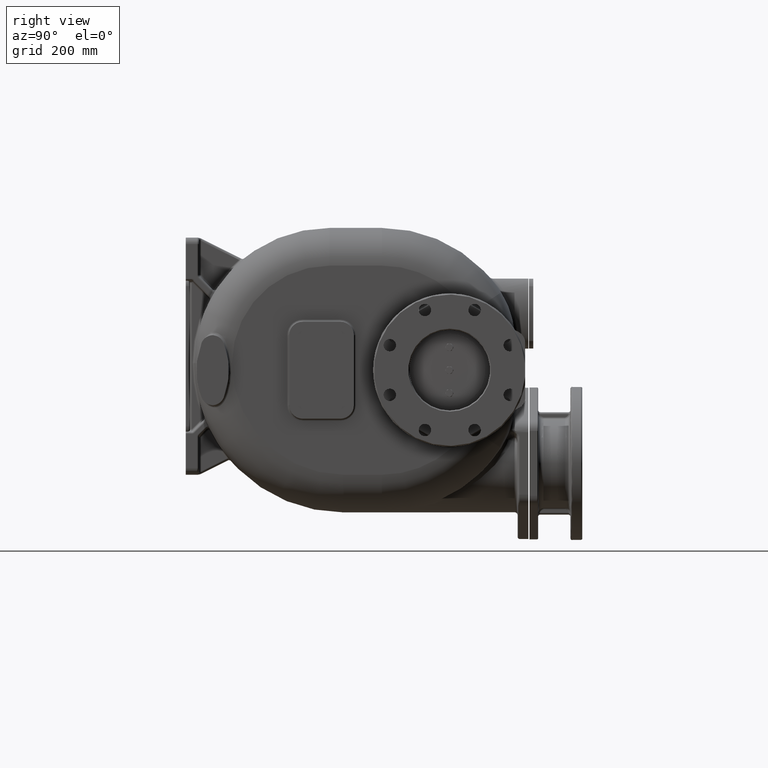
[diagram: clean part render]
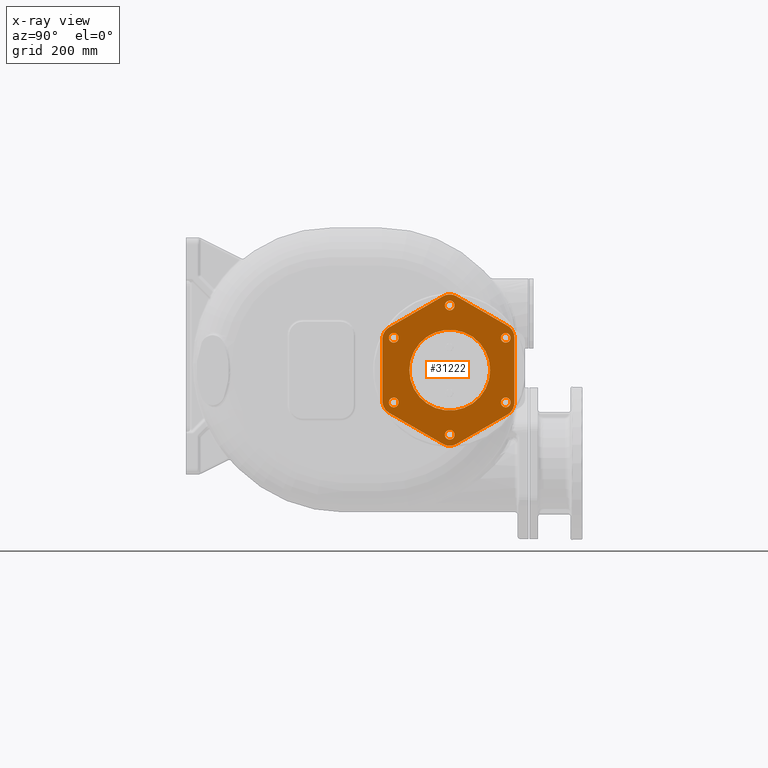
[diagram: x-ray — body ghosted, one internal face saturated and labeled with its STEP entity id]
A machine part, right view, then the same camera in x-ray: the body is ghosted and one INTERNAL B-rep face — a face not visible from any outside direction — is saturated and labeled: STEP entity #31222.
In plain terms, the highlighted planar face has unit normal (-1, 0, 0).
Its self-contained STEP definition (entity closure, byte-faithful):
#6515=DIRECTION('',(0.E0,-8.660254037844E-1,5.E-1));
#6516=VECTOR('',#6515,1.154700538379E2);
#6517=CARTESIAN_POINT('',(2.305E2,4.775E2,-1.631206889325E2));
#6518=LINE('',#6517,#6516);
#6557=CARTESIAN_POINT('',(2.305E2,3.9E2,-8.373502691896E1));
#6558=DIRECTION('',(1.E0,0.E0,0.E0));
#6559=DIRECTION('',(0.E0,-1.E0,0.E0));
#6560=AXIS2_PLACEMENT_3D('',#6557,#6558,#6559);
#6566=DIRECTION('',(0.E0,0.E0,1.E0));
#6567=VECTOR('',#6566,1.154700538379E2);
#6568=CARTESIAN_POINT('',(2.305E2,3.65E2,-8.373502691896E1));
#6569=LINE('',#6568,#6567);
#6608=CARTESIAN_POINT('',(2.305E2,3.9E2,3.173502691896E1));
#6609=DIRECTION('',(1.E0,0.E0,0.E0));
#6610=DIRECTION('',(0.E0,-5.E-1,8.660254037844E-1));
#6611=AXIS2_PLACEMENT_3D('',#6608,#6609,#6610);
#6617=DIRECTION('',(0.E0,8.660254037844E-1,5.E-1));
#6618=VECTOR('',#6617,1.154700538379E2);
#6619=CARTESIAN_POINT('',(2.305E2,3.775E2,5.338566201357E1));
#6620=LINE('',#6619,#6618);
#6659=CARTESIAN_POINT('',(2.305E2,4.9E2,8.947005383793E1));
#6660=DIRECTION('',(1.E0,0.E0,0.E0));
#6661=DIRECTION('',(0.E0,5.E-1,8.660254037844E-1));
#6662=AXIS2_PLACEMENT_3D('',#6659,#6660,#6661);
#6668=DIRECTION('',(0.E0,8.660254037844E-1,-5.E-1));
#6669=VECTOR('',#6668,1.096965511460E2);
#6670=CARTESIAN_POINT('',(2.305E2,5.025E2,1.111206889325E2));
#6671=LINE('',#6670,#6669);
#6783=DIRECTION('',(0.E0,0.E0,-1.E0));
#6784=VECTOR('',#6783,1.212435565298E2);
#6785=CARTESIAN_POINT('',(2.305E2,6.1E2,3.462177826491E1));
#6786=LINE('',#6785,#6784);
#6791=CARTESIAN_POINT('',(2.305E2,5.85E2,-8.662177826491E1));
#6792=DIRECTION('',(1.E0,0.E0,0.E0));
#6793=DIRECTION('',(0.E0,5.E-1,-8.660254037844E-1));
#6794=AXIS2_PLACEMENT_3D('',#6791,#6792,#6793);
#6800=DIRECTION('',(0.E0,-8.660254037844E-1,-5.E-1));
#6801=VECTOR('',#6800,1.096965511460E2);
#6802=CARTESIAN_POINT('',(2.305E2,5.975E2,-1.082724133595E2));
#6803=LINE('',#6802,#6801);
#6889=CARTESIAN_POINT('',(2.305E2,4.9E2,-1.414700538379E2));
#6890=DIRECTION('',(1.E0,0.E0,0.E0));
#6891=DIRECTION('',(0.E0,-5.E-1,-8.660254037844E-1));
#6892=AXIS2_PLACEMENT_3D('',#6889,#6890,#6891);
#6894=CARTESIAN_POINT('',(2.305E2,4.9E2,9.4E1));
#6895=DIRECTION('',(1.E0,0.E0,0.E0));
#6896=DIRECTION('',(0.E0,0.E0,1.E0));
#6897=AXIS2_PLACEMENT_3D('',#6894,#6895,#6896);
#6899=CARTESIAN_POINT('',(2.305E2,4.9E2,9.4E1));
#6900=DIRECTION('',(1.E0,0.E0,0.E0));
#6901=DIRECTION('',(0.E0,0.E0,-1.E0));
#6902=AXIS2_PLACEMENT_3D('',#6899,#6900,#6901);
#6904=CARTESIAN_POINT('',(2.305E2,5.939230484541E2,3.4E1));
#6905=DIRECTION('',(1.E0,0.E0,0.E0));
#6906=DIRECTION('',(0.E0,8.660254037844E-1,5.E-1));
#6907=AXIS2_PLACEMENT_3D('',#6904,#6905,#6906);
#6909=CARTESIAN_POINT('',(2.305E2,5.939230484541E2,3.4E1));
#6910=DIRECTION('',(1.E0,0.E0,0.E0));
#6911=DIRECTION('',(0.E0,-8.660254037844E-1,-5.E-1));
#6912=AXIS2_PLACEMENT_3D('',#6909,#6910,#6911);
#6914=CARTESIAN_POINT('',(2.305E2,5.939230484541E2,-8.6E1));
#6915=DIRECTION('',(1.E0,0.E0,0.E0));
#6916=DIRECTION('',(0.E0,8.660254037844E-1,-5.E-1));
#6917=AXIS2_PLACEMENT_3D('',#6914,#6915,#6916);
#6919=CARTESIAN_POINT('',(2.305E2,5.939230484541E2,-8.6E1));
#6920=DIRECTION('',(1.E0,0.E0,0.E0));
#6921=DIRECTION('',(0.E0,-8.660254037844E-1,5.E-1));
#6922=AXIS2_PLACEMENT_3D('',#6919,#6920,#6921);
#6924=CARTESIAN_POINT('',(2.305E2,4.9E2,-1.46E2));
#6925=DIRECTION('',(1.E0,0.E0,0.E0));
#6926=DIRECTION('',(0.E0,0.E0,-1.E0));
#6927=AXIS2_PLACEMENT_3D('',#6924,#6925,#6926);
#6929=CARTESIAN_POINT('',(2.305E2,4.9E2,-1.46E2));
#6930=DIRECTION('',(1.E0,0.E0,0.E0));
#6931=DIRECTION('',(0.E0,0.E0,1.E0));
#6932=AXIS2_PLACEMENT_3D('',#6929,#6930,#6931);
#6934=CARTESIAN_POINT('',(2.305E2,3.860769515459E2,-8.6E1));
#6935=DIRECTION('',(1.E0,0.E0,0.E0));
#6936=DIRECTION('',(0.E0,-8.660254037844E-1,-5.E-1));
#6937=AXIS2_PLACEMENT_3D('',#6934,#6935,#6936);
#6939=CARTESIAN_POINT('',(2.305E2,3.860769515459E2,-8.6E1));
#6940=DIRECTION('',(1.E0,0.E0,0.E0));
#6941=DIRECTION('',(0.E0,8.660254037844E-1,5.E-1));
#6942=AXIS2_PLACEMENT_3D('',#6939,#6940,#6941);
#6944=CARTESIAN_POINT('',(2.305E2,3.860769515459E2,3.4E1));
#6945=DIRECTION('',(1.E0,0.E0,0.E0));
#6946=DIRECTION('',(0.E0,-8.660254037844E-1,5.E-1));
#6947=AXIS2_PLACEMENT_3D('',#6944,#6945,#6946);
#6949=CARTESIAN_POINT('',(2.305E2,3.860769515459E2,3.4E1));
#6950=DIRECTION('',(1.E0,0.E0,0.E0));
#6951=DIRECTION('',(0.E0,8.660254037844E-1,-5.E-1));
#6952=AXIS2_PLACEMENT_3D('',#6949,#6950,#6951);
#6954=CARTESIAN_POINT('',(2.305E2,5.85E2,3.462177826491E1));
#6955=DIRECTION('',(1.E0,0.E0,0.E0));
#6956=DIRECTION('',(0.E0,1.E0,0.E0));
#6957=AXIS2_PLACEMENT_3D('',#6954,#6955,#6956);
#6963=CARTESIAN_POINT('',(2.305E2,4.9E2,-2.6E1));
#6964=DIRECTION('',(1.E0,0.E0,0.E0));
#6965=DIRECTION('',(0.E0,1.E0,0.E0));
#6966=AXIS2_PLACEMENT_3D('',#6963,#6964,#6965);
#7078=CARTESIAN_POINT('',(2.305E2,4.9E2,-2.6E1));
#7079=DIRECTION('',(-1.E0,0.E0,0.E0));
#7080=DIRECTION('',(0.E0,1.E0,0.E0));
#7081=AXIS2_PLACEMENT_3D('',#7078,#7079,#7080);
#22972=CARTESIAN_POINT('',(2.305E2,5.65E2,-2.6E1));
#22973=CARTESIAN_POINT('',(2.305E2,4.15E2,-2.6E1));
#22974=VERTEX_POINT('',#22972);
#22975=VERTEX_POINT('',#22973);
#22976=CARTESIAN_POINT('',(2.305E2,4.9E2,1.03E2));
#22977=CARTESIAN_POINT('',(2.305E2,4.9E2,8.5E1));
#22978=VERTEX_POINT('',#22976);
#22979=VERTEX_POINT('',#22977);
#22980=CARTESIAN_POINT('',(2.305E2,6.017172770882E2,3.85E1));
#22981=CARTESIAN_POINT('',(2.305E2,5.861288198201E2,2.95E1));
#22982=VERTEX_POINT('',#22980);
#22983=VERTEX_POINT('',#22981);
#22984=CARTESIAN_POINT('',(2.305E2,6.017172770882E2,-9.05E1));
#22985=CARTESIAN_POINT('',(2.305E2,5.861288198201E2,-8.15E1));
#22986=VERTEX_POINT('',#22984);
#22987=VERTEX_POINT('',#22985);
#22988=CARTESIAN_POINT('',(2.305E2,4.9E2,-1.55E2));
#22989=CARTESIAN_POINT('',(2.305E2,4.9E2,-1.37E2));
#22990=VERTEX_POINT('',#22988);
#22991=VERTEX_POINT('',#22989);
#22992=CARTESIAN_POINT('',(2.305E2,3.782827229118E2,-9.05E1));
#22993=CARTESIAN_POINT('',(2.305E2,3.938711801799E2,-8.15E1));
#22994=VERTEX_POINT('',#22992);
#22995=VERTEX_POINT('',#22993);
#22996=CARTESIAN_POINT('',(2.305E2,3.782827229118E2,3.85E1));
#22997=CARTESIAN_POINT('',(2.305E2,3.938711801799E2,2.95E1));
#22998=VERTEX_POINT('',#22996);
#22999=VERTEX_POINT('',#22997);
#23000=CARTESIAN_POINT('',(2.305E2,3.65E2,-8.373502691896E1));
#23001=CARTESIAN_POINT('',(2.305E2,3.65E2,3.173502691896E1));
#23002=VERTEX_POINT('',#23000);
#23003=VERTEX_POINT('',#23001);
#23004=CARTESIAN_POINT('',(2.305E2,3.775E2,5.338566201357E1));
#23005=CARTESIAN_POINT('',(2.305E2,4.775E2,1.111206889325E2));
#23006=VERTEX_POINT('',#23004);
#23007=VERTEX_POINT('',#23005);
#23008=CARTESIAN_POINT('',(2.305E2,5.025E2,1.111206889325E2));
#23009=CARTESIAN_POINT('',(2.305E2,5.975E2,5.627241335952E1));
#23010=VERTEX_POINT('',#23008);
#23011=VERTEX_POINT('',#23009);
#23012=CARTESIAN_POINT('',(2.305E2,6.1E2,3.462177826491E1));
#23013=CARTESIAN_POINT('',(2.305E2,6.1E2,-8.662177826491E1));
#23014=VERTEX_POINT('',#23012);
#23015=VERTEX_POINT('',#23013);
#23016=CARTESIAN_POINT('',(2.305E2,5.975E2,-1.082724133595E2));
#23017=CARTESIAN_POINT('',(2.305E2,5.025E2,-1.631206889325E2));
#23018=VERTEX_POINT('',#23016);
#23019=VERTEX_POINT('',#23017);
#23020=CARTESIAN_POINT('',(2.305E2,4.775E2,-1.631206889325E2));
#23021=CARTESIAN_POINT('',(2.305E2,3.775E2,-1.053856620136E2));
#23022=VERTEX_POINT('',#23020);
#23023=VERTEX_POINT('',#23021);
#31160=CARTESIAN_POINT('',(2.305E2,4.9E2,-2.6E1));
#31161=DIRECTION('',(-1.E0,0.E0,0.E0));
#31162=DIRECTION('',(0.E0,1.E0,0.E0));
#31163=AXIS2_PLACEMENT_3D('',#31160,#31161,#31162);
#31164=PLANE('',#31163);
#31165=ORIENTED_EDGE('',*,*,#30913,.T.);
#31166=ORIENTED_EDGE('',*,*,#30956,.F.);
#31167=ORIENTED_EDGE('',*,*,#30971,.T.);
#31168=ORIENTED_EDGE('',*,*,#31014,.F.);
#31169=ORIENTED_EDGE('',*,*,#31029,.T.);
#31171=ORIENTED_EDGE('',*,*,#31170,.F.);
#31172=ORIENTED_EDGE('',*,*,#31083,.T.);
#31173=ORIENTED_EDGE('',*,*,#31098,.F.);
#31174=ORIENTED_EDGE('',*,*,#31113,.T.);
#31175=ORIENTED_EDGE('',*,*,#31154,.F.);
#31176=ORIENTED_EDGE('',*,*,#30855,.T.);
#31177=ORIENTED_EDGE('',*,*,#30898,.F.);
#31178=EDGE_LOOP('',(#31165,#31166,#31167,#31168,#31169,#31171,#31172,#31173,
#31174,#31175,#31176,#31177));
#31179=FACE_OUTER_BOUND('',#31178,.F.);
#31181=ORIENTED_EDGE('',*,*,#31180,.T.);
#31183=ORIENTED_EDGE('',*,*,#31182,.F.);
#31184=EDGE_LOOP('',(#31181,#31183));
#31185=FACE_BOUND('',#31184,.F.);
#31187=ORIENTED_EDGE('',*,*,#31186,.T.);
#31189=ORIENTED_EDGE('',*,*,#31188,.T.);
#31190=EDGE_LOOP('',(#31187,#31189));
#31191=FACE_BOUND('',#31190,.F.);
#31193=ORIENTED_EDGE('',*,*,#31192,.T.);
#31195=ORIENTED_EDGE('',*,*,#31194,.T.);
#31196=EDGE_LOOP('',(#31193,#31195));
#31197=FACE_BOUND('',#31196,.F.);
#31199=ORIENTED_EDGE('',*,*,#31198,.T.);
#31201=ORIENTED_EDGE('',*,*,#31200,.T.);
#31202=EDGE_LOOP('',(#31199,#31201));
#31203=FACE_BOUND('',#31202,.F.);
#31205=ORIENTED_EDGE('',*,*,#31204,.T.);
#31207=ORIENTED_EDGE('',*,*,#31206,.T.);
#31208=EDGE_LOOP('',(#31205,#31207));
#31209=FACE_BOUND('',#31208,.F.);
#31211=ORIENTED_EDGE('',*,*,#31210,.T.);
#31213=ORIENTED_EDGE('',*,*,#31212,.T.);
#31214=EDGE_LOOP('',(#31211,#31213));
#31215=FACE_BOUND('',#31214,.F.);
#31217=ORIENTED_EDGE('',*,*,#31216,.T.);
#31219=ORIENTED_EDGE('',*,*,#31218,.T.);
#31220=EDGE_LOOP('',(#31217,#31219));
#31221=FACE_BOUND('',#31220,.F.);
#31222=ADVANCED_FACE('',(#31179,#31185,#31191,#31197,#31203,#31209,#31215,
#31221),#31164,.F.);
#6561=CIRCLE('',#6560,2.5E1);
#6612=CIRCLE('',#6611,2.5E1);
#6663=CIRCLE('',#6662,2.5E1);
#6795=CIRCLE('',#6794,2.5E1);
#6893=CIRCLE('',#6892,2.5E1);
#6898=CIRCLE('',#6897,9.E0);
#6903=CIRCLE('',#6902,9.E0);
#6908=CIRCLE('',#6907,9.E0);
#6913=CIRCLE('',#6912,9.E0);
#6918=CIRCLE('',#6917,9.E0);
#6923=CIRCLE('',#6922,9.E0);
#6928=CIRCLE('',#6927,9.E0);
#6933=CIRCLE('',#6932,9.E0);
#6938=CIRCLE('',#6937,9.E0);
#6943=CIRCLE('',#6942,9.E0);
#6948=CIRCLE('',#6947,9.E0);
#6953=CIRCLE('',#6952,9.E0);
#6958=CIRCLE('',#6957,2.5E1);
#6967=CIRCLE('',#6966,7.5E1);
#7082=CIRCLE('',#7081,7.5E1);
#30855=EDGE_CURVE('',#23022,#23023,#6518,.T.);
#30898=EDGE_CURVE('',#23002,#23023,#6561,.T.);
#30913=EDGE_CURVE('',#23002,#23003,#6569,.T.);
#30956=EDGE_CURVE('',#23006,#23003,#6612,.T.);
#30971=EDGE_CURVE('',#23006,#23007,#6620,.T.);
#31014=EDGE_CURVE('',#23010,#23007,#6663,.T.);
#31029=EDGE_CURVE('',#23010,#23011,#6671,.T.);
#31083=EDGE_CURVE('',#23014,#23015,#6786,.T.);
#31098=EDGE_CURVE('',#23018,#23015,#6795,.T.);
#31113=EDGE_CURVE('',#23018,#23019,#6803,.T.);
#31154=EDGE_CURVE('',#23022,#23019,#6893,.T.);
#31170=EDGE_CURVE('',#23014,#23011,#6958,.T.);
#31180=EDGE_CURVE('',#22974,#22975,#6967,.T.);
#31182=EDGE_CURVE('',#22974,#22975,#7082,.T.);
#31186=EDGE_CURVE('',#22978,#22979,#6898,.T.);
#31188=EDGE_CURVE('',#22979,#22978,#6903,.T.);
#31192=EDGE_CURVE('',#22982,#22983,#6908,.T.);
#31194=EDGE_CURVE('',#22983,#22982,#6913,.T.);
#31198=EDGE_CURVE('',#22986,#22987,#6918,.T.);
#31200=EDGE_CURVE('',#22987,#22986,#6923,.T.);
#31204=EDGE_CURVE('',#22990,#22991,#6928,.T.);
#31206=EDGE_CURVE('',#22991,#22990,#6933,.T.);
#31210=EDGE_CURVE('',#22994,#22995,#6938,.T.);
#31212=EDGE_CURVE('',#22995,#22994,#6943,.T.);
#31216=EDGE_CURVE('',#22998,#22999,#6948,.T.);
#31218=EDGE_CURVE('',#22999,#22998,#6953,.T.);